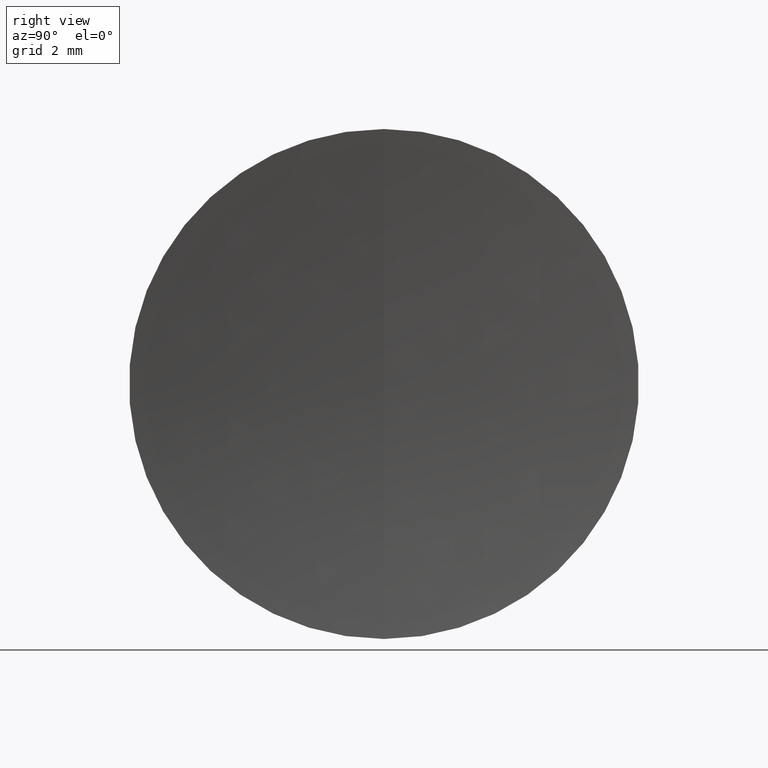
[diagram: clean part render]
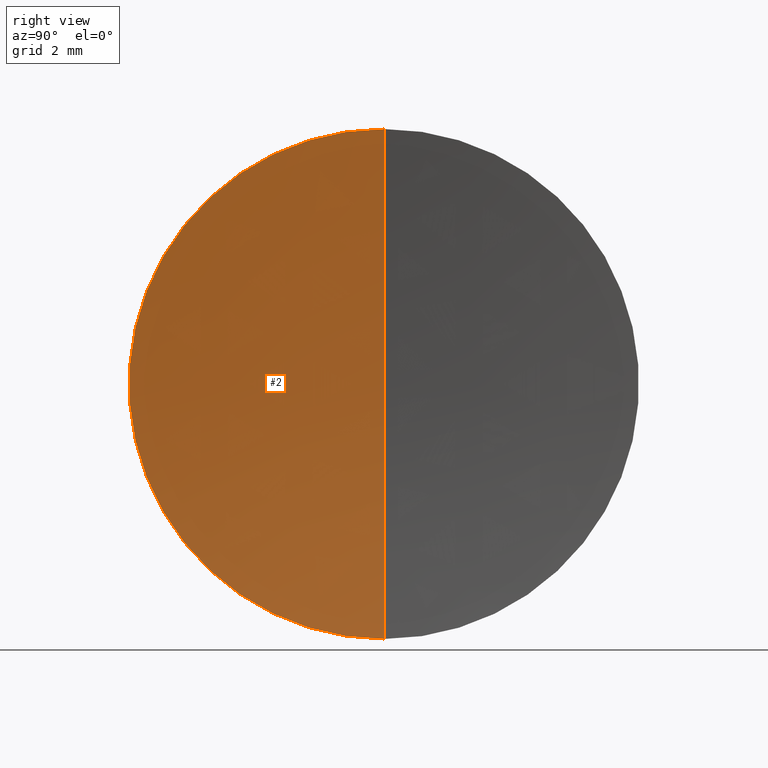
[diagram: same view with one face highlighted and labeled with its STEP entity id]
A machine part, right view. The second image highlights one B-rep face of the part: STEP entity #2.
In plain terms, the highlighted spherical surface has radius 50 mm.
Its self-contained STEP definition (entity closure, byte-faithful):
#2 = ADVANCED_FACE ( 'NONE', ( #120 ), #37, .F. ) ;
#4 = CIRCLE ( 'NONE', #103, 50.00000000000000000 ) ;
#7 = CARTESIAN_POINT ( 'NONE',  ( 52.78000000000000100, 0.0000000000000000000, 0.0000000000000000000 ) ) ;
#9 = EDGE_LOOP ( 'NONE', ( #65, #99, #63 ) ) ;
#18 = DIRECTION ( 'NONE',  ( 0.0000000000000000000, 1.000000000000000000, 0.0000000000000000000 ) ) ;
#19 = CARTESIAN_POINT ( 'NONE',  ( 52.78000000000000100, 0.0000000000000000000, 0.0000000000000000000 ) ) ;
#25 = VERTEX_POINT ( 'NONE', #58 ) ;
#26 = DIRECTION ( 'NONE',  ( 0.0000000000000000000, 0.0000000000000000000, 1.000000000000000000 ) ) ;
#29 = DIRECTION ( 'NONE',  ( 0.0000000000000000000, 0.0000000000000000000, -1.000000000000000000 ) ) ;
#34 = EDGE_CURVE ( 'NONE', #86, #104, #4, .T. ) ;
#37 = SPHERICAL_SURFACE ( 'NONE', #69, 50.00000000000000000 ) ;
#51 = AXIS2_PLACEMENT_3D ( 'NONE', #19, #113, #29 ) ;
#56 = CARTESIAN_POINT ( 'NONE',  ( 3.184864149797912900, 0.0000000000000000000, 0.0000000000000000000 ) ) ;
#58 = CARTESIAN_POINT ( 'NONE',  ( 3.184864149797912900, 0.0000000000000000000, 6.350000000000003200 ) ) ;
#63 = ORIENTED_EDGE ( 'NONE', *, *, #142, .F. ) ;
#65 = ORIENTED_EDGE ( 'NONE', *, *, #68, .F. ) ;
#68 = EDGE_CURVE ( 'NONE', #86, #25, #153, .T. ) ;
#69 = AXIS2_PLACEMENT_3D ( 'NONE', #7, #18, #82 ) ;
#70 = DIRECTION ( 'NONE',  ( 0.0000000000000000000, -1.224646799147353200E-016, 1.000000000000000000 ) ) ;
#82 = DIRECTION ( 'NONE',  ( 0.0000000000000000000, 0.0000000000000000000, 1.000000000000000000 ) ) ;
#86 = VERTEX_POINT ( 'NONE', #124 ) ;
#90 = CIRCLE ( 'NONE', #51, 50.00000000000000000 ) ;
#99 = ORIENTED_EDGE ( 'NONE', *, *, #34, .T. ) ;
#103 = AXIS2_PLACEMENT_3D ( 'NONE', #135, #146, #70 ) ;
#104 = VERTEX_POINT ( 'NONE', #108 ) ;
#108 = CARTESIAN_POINT ( 'NONE',  ( 2.779999999999997600, 0.0000000000000000000, 3.061616997868383000E-015 ) ) ;
#113 = DIRECTION ( 'NONE',  ( 0.0000000000000000000, -1.000000000000000000, 0.0000000000000000000 ) ) ;
#120 = FACE_OUTER_BOUND ( 'NONE', #9, .T. ) ;
#123 = DIRECTION ( 'NONE',  ( -1.000000000000000000, -0.0000000000000000000, -0.0000000000000000000 ) ) ;
#124 = CARTESIAN_POINT ( 'NONE',  ( 3.184864149797912900, 7.776507174585696100E-016, -6.350000000000003200 ) ) ;
#135 = CARTESIAN_POINT ( 'NONE',  ( 52.78000000000000100, 0.0000000000000000000, 0.0000000000000000000 ) ) ;
#142 = EDGE_CURVE ( 'NONE', #25, #104, #90, .T. ) ;
#146 = DIRECTION ( 'NONE',  ( -0.0000000000000000000, 1.000000000000000000, 1.224646799147353200E-016 ) ) ;
#153 = CIRCLE ( 'NONE', #156, 6.350000000000012100 ) ;
#156 = AXIS2_PLACEMENT_3D ( 'NONE', #56, #123, #26 ) ;